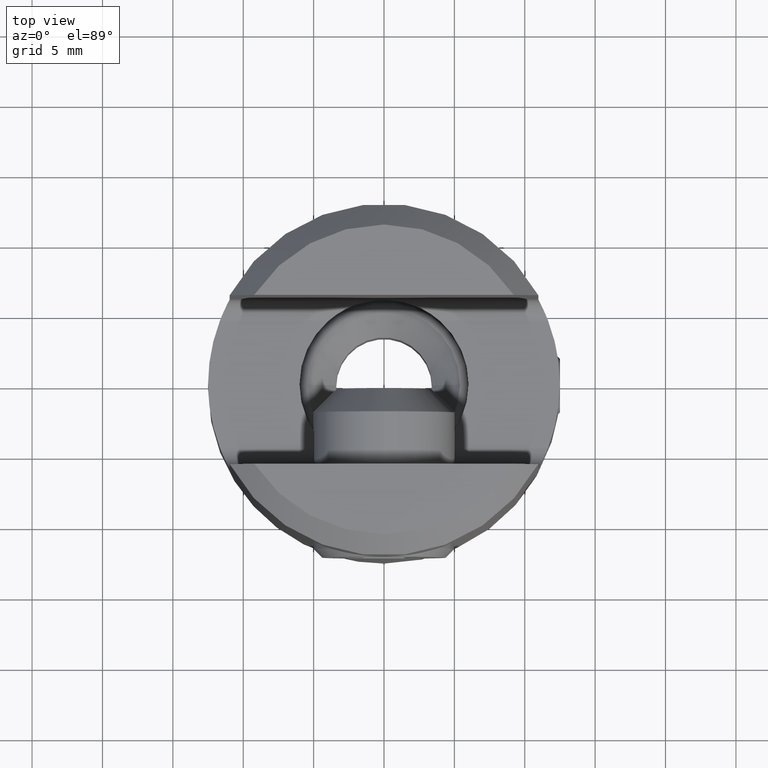
[diagram: clean part render]
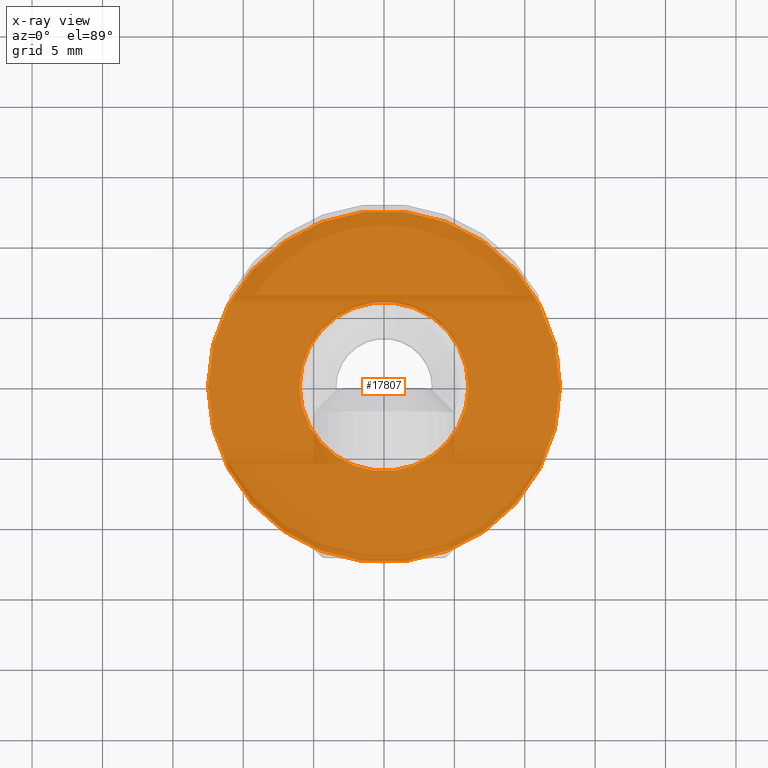
[diagram: x-ray — body ghosted, one internal face saturated and labeled with its STEP entity id]
A machine part, top view, then the same camera in x-ray: the body is ghosted and one INTERNAL B-rep face — a face not visible from any outside direction — is saturated and labeled: STEP entity #17807.
In plain terms, the highlighted planar face has unit normal (0, 0, -1).
Its self-contained STEP definition (entity closure, byte-faithful):
#1456 = EDGE_LOOP ( 'NONE', ( #28035, #31446 ) ) ;
#1820 = AXIS2_PLACEMENT_3D ( 'NONE', #18000, #5448, #23593 ) ;
#2196 = VERTEX_POINT ( 'NONE', #23072 ) ;
#2638 = ORIENTED_EDGE ( 'NONE', *, *, #25327, .F. ) ;
#3269 = EDGE_CURVE ( 'NONE', #22526, #19734, #6785, .T. ) ;
#3287 = DIRECTION ( 'NONE',  ( 1.000000000000000000, 0.000000000000000000, 0.000000000000000000 ) ) ;
#4362 = AXIS2_PLACEMENT_3D ( 'NONE', #19887, #30072, #27326 ) ;
#4363 = FACE_OUTER_BOUND ( 'NONE', #1456, .T. ) ;
#4917 = AXIS2_PLACEMENT_3D ( 'NONE', #22681, #19009, #11661 ) ;
#5448 = DIRECTION ( 'NONE',  ( -0.000000000000000000, -0.000000000000000000, 1.000000000000000000 ) ) ;
#6785 = CIRCLE ( 'NONE', #4917, 6.000000000000000000 ) ;
#7481 = CARTESIAN_POINT ( 'NONE',  ( 12.50000000000000000, 0.000000000000000000, -1.750000000000001554 ) ) ;
#8169 = CARTESIAN_POINT ( 'NONE',  ( 0.000000000000000000, 0.000000000000000000, -1.750000000000001554 ) ) ;
#8273 = DIRECTION ( 'NONE',  ( -0.000000000000000000, -0.000000000000000000, 1.000000000000000000 ) ) ;
#8379 = PLANE ( 'NONE',  #20509 ) ;
#9084 = EDGE_CURVE ( 'NONE', #2196, #24236, #10186, .T. ) ;
#10186 = CIRCLE ( 'NONE', #4362, 12.50000000000000000 ) ;
#11505 = FACE_BOUND ( 'NONE', #15650, .T. ) ;
#11661 = DIRECTION ( 'NONE',  ( 1.000000000000000000, 0.000000000000000000, 0.000000000000000000 ) ) ;
#13216 = DIRECTION ( 'NONE',  ( 0.000000000000000000, 0.000000000000000000, -1.000000000000000000 ) ) ;
#15295 = ORIENTED_EDGE ( 'NONE', *, *, #3269, .F. ) ;
#15531 = CARTESIAN_POINT ( 'NONE',  ( -6.000000000000000000, 7.347880794884119736E-16, -1.750000000000001554 ) ) ;
#15650 = EDGE_LOOP ( 'NONE', ( #2638, #15295 ) ) ;
#15678 = CARTESIAN_POINT ( 'NONE',  ( 6.000000000000000000, 0.000000000000000000, -1.750000000000001554 ) ) ;
#15756 = DIRECTION ( 'NONE',  ( -1.000000000000000000, 0.000000000000000000, -0.000000000000000000 ) ) ;
#15864 = CARTESIAN_POINT ( 'NONE',  ( 0.000000000000000000, 6.000000000000000000, -1.750000000000001554 ) ) ;
#17807 = ADVANCED_FACE ( 'NONE', ( #11505, #4363 ), #8379, .F. ) ;
#18000 = CARTESIAN_POINT ( 'NONE',  ( 0.000000000000000000, 0.000000000000000000, -1.750000000000001554 ) ) ;
#19009 = DIRECTION ( 'NONE',  ( -0.000000000000000000, -0.000000000000000000, 1.000000000000000000 ) ) ;
#19734 = VERTEX_POINT ( 'NONE', #15678 ) ;
#19887 = CARTESIAN_POINT ( 'NONE',  ( 0.000000000000000000, 0.000000000000000000, -1.750000000000001554 ) ) ;
#20509 = AXIS2_PLACEMENT_3D ( 'NONE', #15864, #13216, #15756 ) ;
#22526 = VERTEX_POINT ( 'NONE', #15531 ) ;
#22681 = CARTESIAN_POINT ( 'NONE',  ( 0.000000000000000000, 0.000000000000000000, -1.750000000000001554 ) ) ;
#23072 = CARTESIAN_POINT ( 'NONE',  ( -12.50000000000000000, 1.530808498934191521E-15, -1.750000000000001554 ) ) ;
#23593 = DIRECTION ( 'NONE',  ( 1.000000000000000000, 0.000000000000000000, 0.000000000000000000 ) ) ;
#24236 = VERTEX_POINT ( 'NONE', #7481 ) ;
#25265 = CIRCLE ( 'NONE', #31991, 12.50000000000000000 ) ;
#25327 = EDGE_CURVE ( 'NONE', #19734, #22526, #25400, .T. ) ;
#25400 = CIRCLE ( 'NONE', #1820, 6.000000000000000000 ) ;
#27326 = DIRECTION ( 'NONE',  ( 1.000000000000000000, 0.000000000000000000, 0.000000000000000000 ) ) ;
#27563 = EDGE_CURVE ( 'NONE', #24236, #2196, #25265, .T. ) ;
#28035 = ORIENTED_EDGE ( 'NONE', *, *, #27563, .T. ) ;
#30072 = DIRECTION ( 'NONE',  ( -0.000000000000000000, -0.000000000000000000, 1.000000000000000000 ) ) ;
#31446 = ORIENTED_EDGE ( 'NONE', *, *, #9084, .T. ) ;
#31991 = AXIS2_PLACEMENT_3D ( 'NONE', #8169, #8273, #3287 ) ;